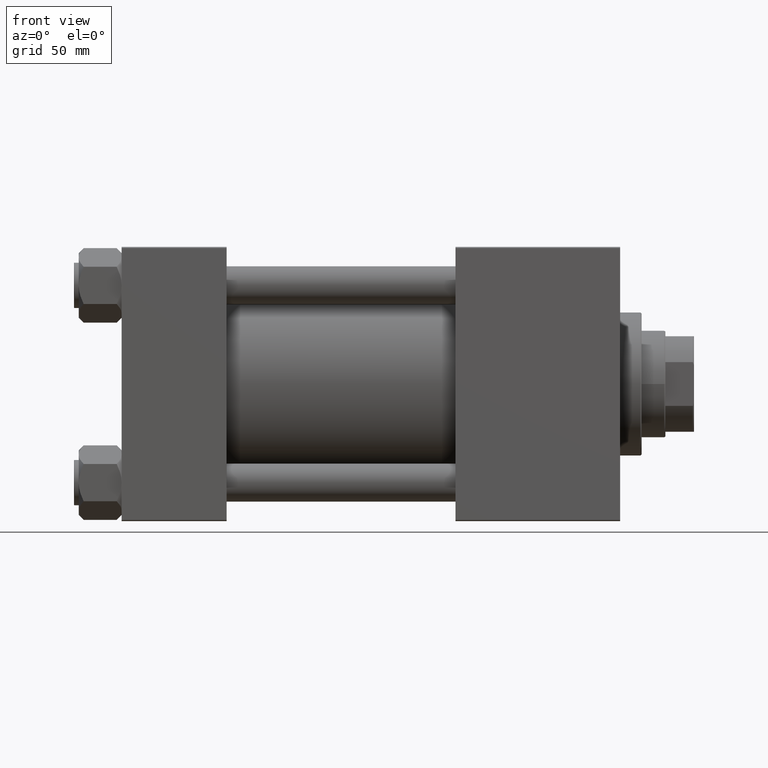
[diagram: clean part render]
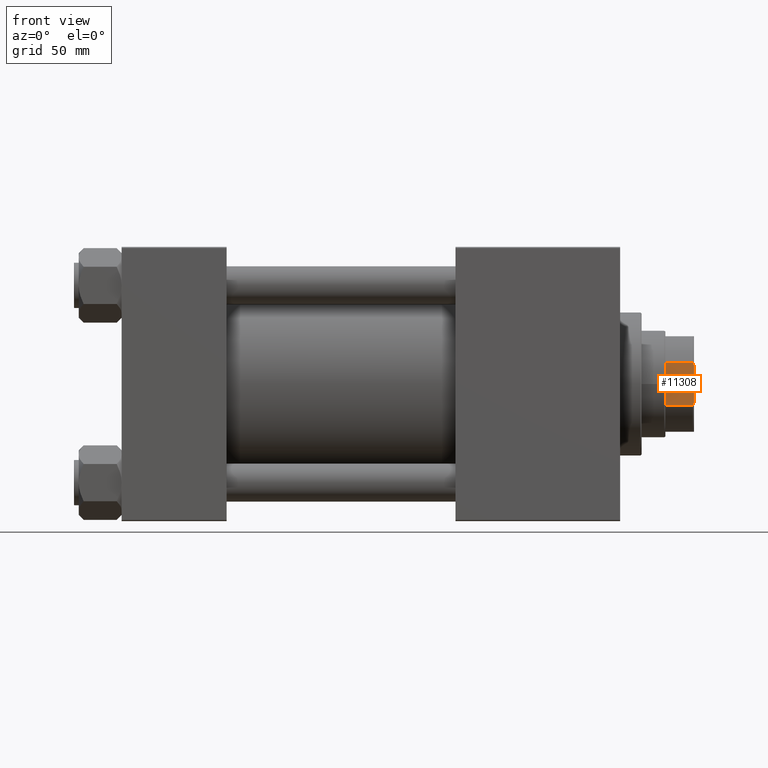
[diagram: same view with one face highlighted and labeled with its STEP entity id]
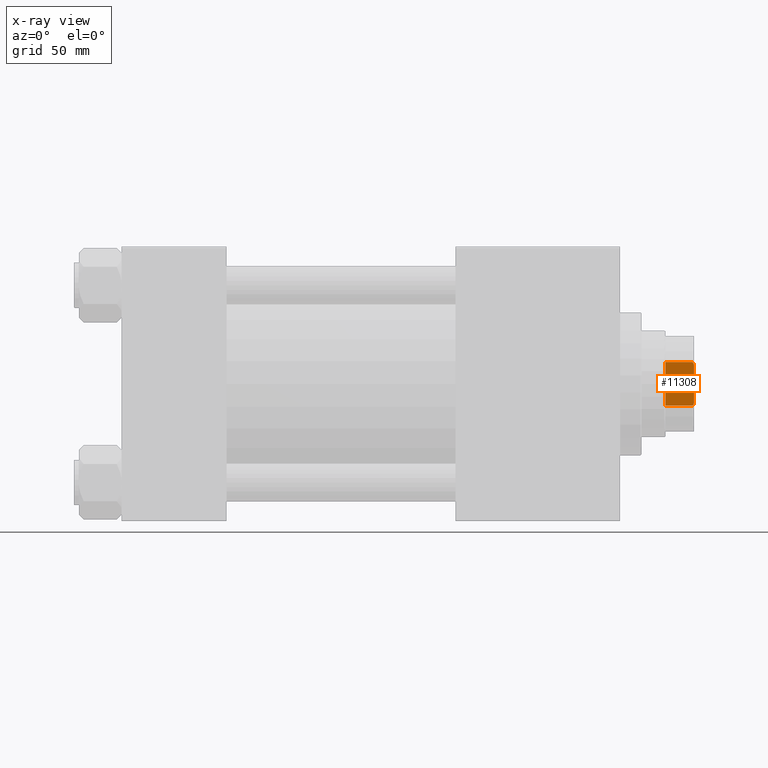
[diagram: x-ray of the same camera — body ghosted, the highlighted face saturated]
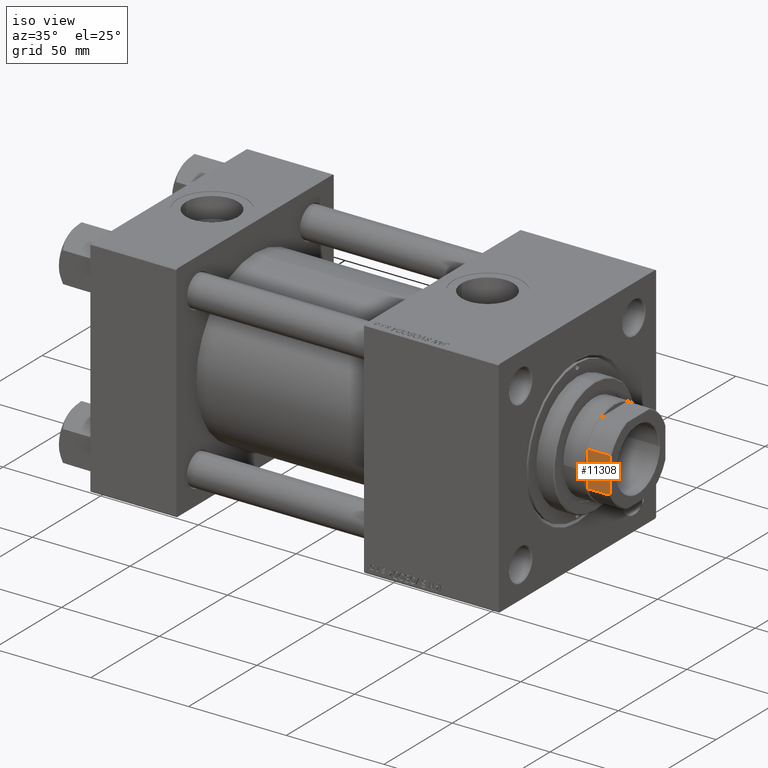
[diagram: same view with one face highlighted and labeled with its STEP entity id]
A machine part, front view. The second image highlights one B-rep face of the part: STEP entity #11308.
The next image is the same camera in x-ray: the body ghosted, the highlighted face saturated — about 0% of this face is hidden behind the body in this view.
A second angle (iso view) of the same face is appended — the face is thin or edge-on in the first view.
In plain terms, the highlighted planar face has unit normal (0, 1, 0).
Its self-contained STEP definition (entity closure, byte-faithful):
#336 = VECTOR ( 'NONE', #41981, 1000.000000000000000 ) ;
#400 = CARTESIAN_POINT ( 'NONE',  ( 20.00000000000000000, 8.318618722654473885, 195.8426607129352703 ) ) ;
#1278 = EDGE_CURVE ( 'NONE', #29096, #35488, #33620, .T. ) ;
#1445 = B_SPLINE_CURVE_WITH_KNOTS ( 'NONE', 3,
 ( #19179, #4511, #400, #7866 ),
 .UNSPECIFIED., .F., .F.,
 ( 4, 4 ),
 ( 0.000000000000000000, 0.001369799431184125400 ),
 .UNSPECIFIED. ) ;
#1513 = CARTESIAN_POINT ( 'NONE',  ( 19.99999999999999645, 20.00000000000000000, 196.0000000000000000 ) ) ;
#4511 = CARTESIAN_POINT ( 'NONE',  ( 19.99999999999999645, 8.743570658524390637, 195.6756296011924974 ) ) ;
#6315 = ORIENTED_EDGE ( 'NONE', *, *, #27849, .T. ) ;
#7866 = CARTESIAN_POINT ( 'NONE',  ( 20.00000000000000000, 7.889866919029840275, 196.0000000000000000 ) ) ;
#8229 = EDGE_CURVE ( 'NONE', #49231, #28080, #18316, .T. ) ;
#9431 = CARTESIAN_POINT ( 'NONE',  ( 19.99999999999999289, -9.165151389911693869, -0.001000000000001000089 ) ) ;
#11308 = ADVANCED_FACE ( 'NONE', ( #38960 ), #35099, .F. ) ;
#13693 = ORIENTED_EDGE ( 'NONE', *, *, #33987, .F. ) ;
#14223 = CARTESIAN_POINT ( 'NONE',  ( 19.99999999999999645, 9.165151389911683211, -0.001000000000001000089 ) ) ;
#14569 = DIRECTION ( 'NONE',  ( -1.000000000000000000, -1.734723475976806848E-16, 0.000000000000000000 ) ) ;
#14768 = CARTESIAN_POINT ( 'NONE',  ( 19.99999999999999289, -9.165151389911693869, 184.0000000000000000 ) ) ;
#15559 = CARTESIAN_POINT ( 'NONE',  ( 19.99999999999999645, 20.00000000000000000, 196.0000000000000000 ) ) ;
#16486 = CARTESIAN_POINT ( 'NONE',  ( 20.00000000000000000, -8.743570658524355110, 195.6756296011924690 ) ) ;
#18316 = LINE ( 'NONE', #33979, #47268 ) ;
#18430 = DIRECTION ( 'NONE',  ( 1.734723475976806848E-16, -1.000000000000000000, 0.000000000000000000 ) ) ;
#19179 = CARTESIAN_POINT ( 'NONE',  ( 19.99999999999999645, 9.165151389911683211, 195.5000000000000284 ) ) ;
#19829 = CARTESIAN_POINT ( 'NONE',  ( 20.00000000000000000, -7.889866919029691061, 196.0000000000000000 ) ) ;
#22817 = VERTEX_POINT ( 'NONE', #34036 ) ;
#23693 = CARTESIAN_POINT ( 'NONE',  ( 19.99999999999999645, 9.165151389911683211, 184.0000000000000000 ) ) ;
#27849 = EDGE_CURVE ( 'NONE', #28080, #39906, #48657, .T. ) ;
#28080 = VERTEX_POINT ( 'NONE', #23693 ) ;
#29096 = VERTEX_POINT ( 'NONE', #43984 ) ;
#30146 = VECTOR ( 'NONE', #33578, 1000.000000000000000 ) ;
#31683 = ORIENTED_EDGE ( 'NONE', *, *, #39597, .T. ) ;
#33231 = VECTOR ( 'NONE', #49047, 1000.000000000000000 ) ;
#33578 = DIRECTION ( 'NONE',  ( -0.000000000000000000, -0.000000000000000000, 1.000000000000000000 ) ) ;
#33620 = LINE ( 'NONE', #1513, #33231 ) ;
#33979 = CARTESIAN_POINT ( 'NONE',  ( 19.99999999999999645, 20.00000000000000000, 184.0000000000000000 ) ) ;
#33987 = EDGE_CURVE ( 'NONE', #49231, #22817, #44631, .T. ) ;
#34036 = CARTESIAN_POINT ( 'NONE',  ( 19.99999999999999289, -9.165151389911693869, 195.4999999999999716 ) ) ;
#34895 = ORIENTED_EDGE ( 'NONE', *, *, #1278, .F. ) ;
#35099 = PLANE ( 'NONE',  #44950 ) ;
#35488 = VERTEX_POINT ( 'NONE', #35968 ) ;
#35502 = CARTESIAN_POINT ( 'NONE',  ( 20.00000000000000000, -8.318618722654377962, 195.8426607129352135 ) ) ;
#35968 = CARTESIAN_POINT ( 'NONE',  ( 20.00000000000000000, 7.889866919029840275, 196.0000000000000000 ) ) ;
#37154 = ORIENTED_EDGE ( 'NONE', *, *, #8229, .T. ) ;
#38960 = FACE_OUTER_BOUND ( 'NONE', #42984, .T. ) ;
#39597 = EDGE_CURVE ( 'NONE', #29096, #22817, #41191, .T. ) ;
#39906 = VERTEX_POINT ( 'NONE', #48027 ) ;
#41191 = B_SPLINE_CURVE_WITH_KNOTS ( 'NONE', 3,
 ( #19829, #35502, #16486, #47325 ),
 .UNSPECIFIED., .F., .F.,
 ( 4, 4 ),
 ( 1.734723475976807094E-18, 0.001369799431184292151 ),
 .UNSPECIFIED. ) ;
#41981 = DIRECTION ( 'NONE',  ( -0.000000000000000000, -0.000000000000000000, 1.000000000000000000 ) ) ;
#42984 = EDGE_LOOP ( 'NONE', ( #6315, #45292, #34895, #31683, #13693, #37154 ) ) ;
#43984 = CARTESIAN_POINT ( 'NONE',  ( 20.00000000000000000, -7.889866919029691061, 196.0000000000000000 ) ) ;
#44631 = LINE ( 'NONE', #9431, #30146 ) ;
#44950 = AXIS2_PLACEMENT_3D ( 'NONE', #15559, #14569, #18430 ) ;
#45292 = ORIENTED_EDGE ( 'NONE', *, *, #47698, .T. ) ;
#47268 = VECTOR ( 'NONE', #49668, 1000.000000000000000 ) ;
#47325 = CARTESIAN_POINT ( 'NONE',  ( 19.99999999999999289, -9.165151389911693869, 195.4999999999999716 ) ) ;
#47698 = EDGE_CURVE ( 'NONE', #39906, #35488, #1445, .T. ) ;
#48027 = CARTESIAN_POINT ( 'NONE',  ( 19.99999999999999645, 9.165151389911683211, 195.5000000000000284 ) ) ;
#48657 = LINE ( 'NONE', #14223, #336 ) ;
#49047 = DIRECTION ( 'NONE',  ( -1.734723475976807094E-16, 1.000000000000000000, -0.000000000000000000 ) ) ;
#49231 = VERTEX_POINT ( 'NONE', #14768 ) ;
#49668 = DIRECTION ( 'NONE',  ( -1.734723475976807094E-16, 1.000000000000000000, -0.000000000000000000 ) ) ;